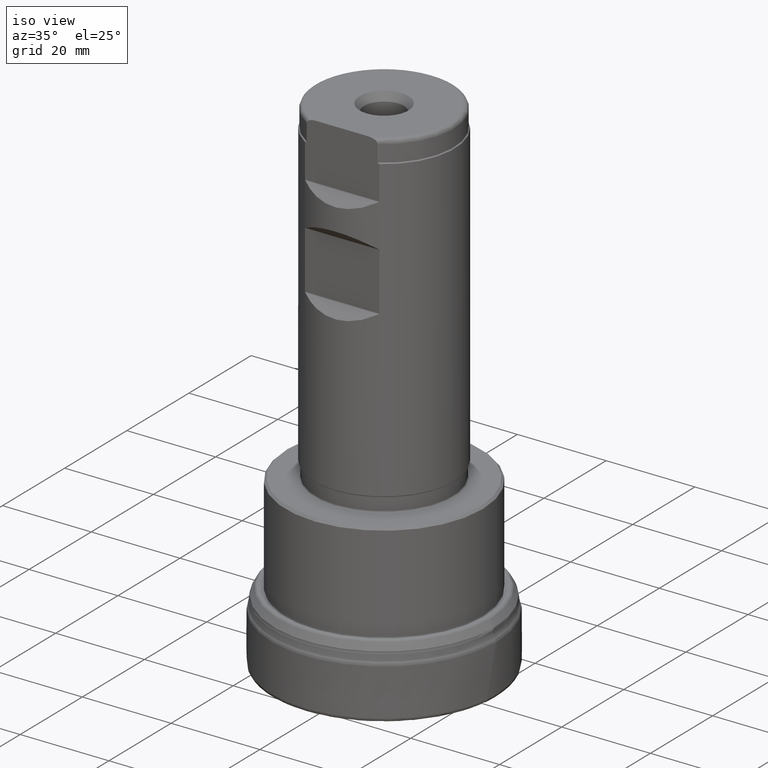
[diagram: clean part render]
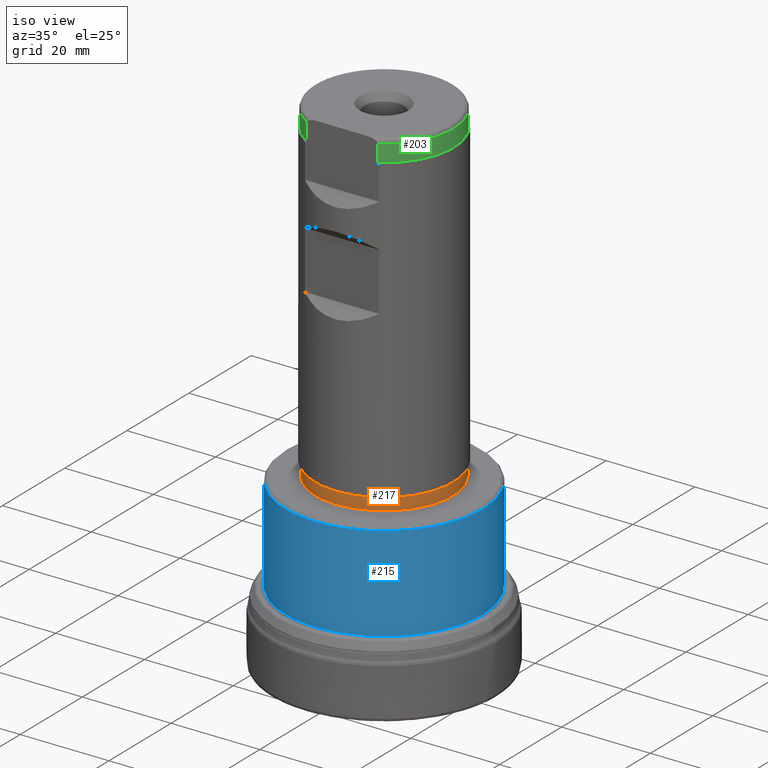
[diagram: same view with three faces highlighted in distinct colors, each labeled with its STEP entity id]
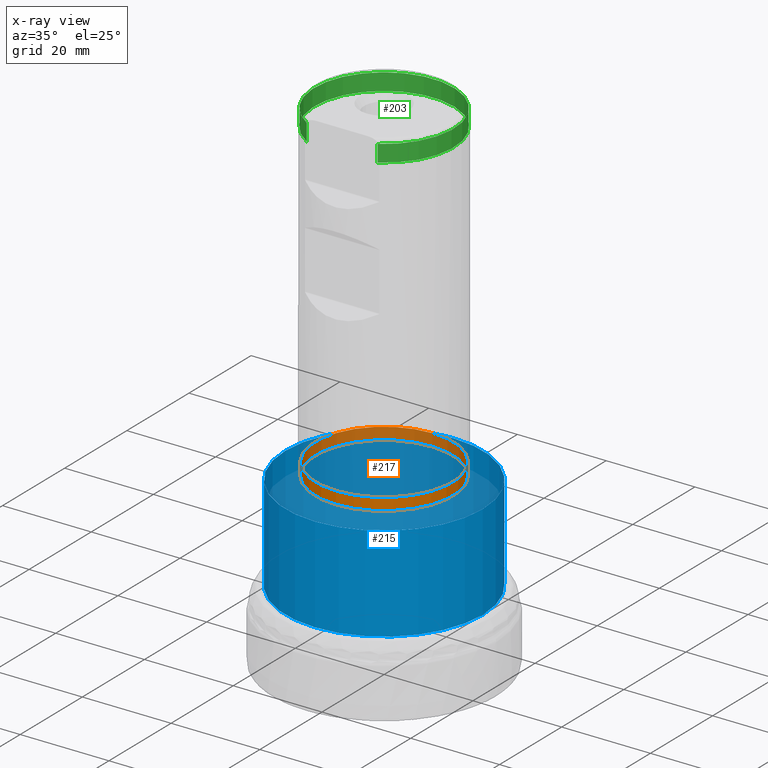
[diagram: x-ray of the same camera — body ghosted, the three highlighted faces saturated]
A machine part, iso view with three faces highlighted in distinct colors.
The next image is the same camera in x-ray (body ghosted, the three faces saturated) — at least one of them is partly hidden behind the body in this view.
Their STEP definitions:

[orange] entity #217 — the highlighted cylindrical surface (bore or boss wall) has radius 15.475 mm, axis along (0, -0, -1).
#217=ADVANCED_FACE('',(#346,#347),#267,.T.);
#267=CYLINDRICAL_SURFACE('',#975,15.475);
#299=CIRCLE('',#973,15.475);
#300=CIRCLE('',#974,15.475);
#346=FACE_BOUND('',#452,.T.);
#347=FACE_BOUND('',#453,.T.);
#452=EDGE_LOOP('',(#621));
#453=EDGE_LOOP('',(#622));
#621=ORIENTED_EDGE('',*,*,#846,.T.);
#622=ORIENTED_EDGE('',*,*,#847,.T.);
#771=VERTEX_POINT('',#1729);
#772=VERTEX_POINT('',#1731);
#846=EDGE_CURVE('',#771,#771,#299,.T.);
#847=EDGE_CURVE('',#772,#772,#300,.T.);
#973=AXIS2_PLACEMENT_3D('',#1728,#1118,#1119);
#974=AXIS2_PLACEMENT_3D('',#1730,#1120,#1121);
#975=AXIS2_PLACEMENT_3D('',#1732,#1122,#1123);
#1118=DIRECTION('',(0.,-1.17145536458252E-15,-1.));
#1119=DIRECTION('',(0.,1.,-1.34518137070899E-15));
#1120=DIRECTION('',(0.,1.17145536458252E-15,1.));
#1121=DIRECTION('',(0.,-1.,1.34518137070899E-15));
#1122=DIRECTION('',(0.,-1.17145536458252E-15,-1.));
#1123=DIRECTION('',(0.,1.,-1.17145536458252E-15));
#1728=CARTESIAN_POINT('',(0.,4.82639610208E-14,41.2));
#1729=CARTESIAN_POINT('',(0.,15.475,41.2));
#1730=CARTESIAN_POINT('',(0.,4.51010315364272E-14,38.5));
#1731=CARTESIAN_POINT('',(0.,-15.4749999999999,38.5));
#1732=CARTESIAN_POINT('',(0.,0.,0.));

[blue] entity #215 — the highlighted cylindrical surface (bore or boss wall) has radius 22.225 mm, axis along (0, -0, -1).
#215=ADVANCED_FACE('',(#342,#343),#266,.T.);
#266=CYLINDRICAL_SURFACE('',#969,22.225);
#295=CIRCLE('',#967,22.225);
#296=CIRCLE('',#968,22.225);
#342=FACE_BOUND('',#448,.T.);
#343=FACE_BOUND('',#449,.T.);
#448=EDGE_LOOP('',(#617));
#449=EDGE_LOOP('',(#618));
#617=ORIENTED_EDGE('',*,*,#842,.T.);
#618=ORIENTED_EDGE('',*,*,#843,.T.);
#767=VERTEX_POINT('',#1719);
#768=VERTEX_POINT('',#1721);
#842=EDGE_CURVE('',#767,#767,#295,.T.);
#843=EDGE_CURVE('',#768,#768,#296,.T.);
#967=AXIS2_PLACEMENT_3D('',#1718,#1106,#1107);
#968=AXIS2_PLACEMENT_3D('',#1720,#1108,#1109);
#969=AXIS2_PLACEMENT_3D('',#1722,#1110,#1111);
#1106=DIRECTION('',(0.,-1.17145536458252E-15,-1.));
#1107=DIRECTION('',(0.,-1.,1.24884479710366E-15));
#1108=DIRECTION('',(0.,1.17145536458252E-15,1.));
#1109=DIRECTION('',(0.,1.,-1.24884479710366E-15));
#1110=DIRECTION('',(0.,-1.17145536458252E-15,-1.));
#1111=DIRECTION('',(0.,1.,-1.17145536458252E-15));
#1718=CARTESIAN_POINT('',(0.,4.40467217083029E-14,37.6));
#1719=CARTESIAN_POINT('',(0.,-22.225,37.6));
#1720=CARTESIAN_POINT('',(0.,1.87891670765182E-14,16.0391660191117));
#1721=CARTESIAN_POINT('',(0.,22.225,16.0391660191117));
#1722=CARTESIAN_POINT('',(0.,0.,0.));

[green] entity #203 — the highlighted cylindrical surface (partial cylindrical patch) has radius 15.675 mm, axis along (0, -0, -1).
#191=FACE_OUTER_BOUND('',#427,.T.);
#203=ADVANCED_FACE('',(#191),#265,.T.);
#265=CYLINDRICAL_SURFACE('',#937,15.675);
#275=CIRCLE('',#935,15.675);
#276=CIRCLE('',#936,15.675);
#427=EDGE_LOOP('',(#586,#587,#588,#589));
#540=LINE('',#1639,#556);
#541=LINE('',#1643,#557);
#556=VECTOR('',#1041,1.);
#557=VECTOR('',#1044,1.);
#586=ORIENTED_EDGE('',*,*,#815,.T.);
#587=ORIENTED_EDGE('',*,*,#816,.T.);
#588=ORIENTED_EDGE('',*,*,#817,.T.);
#589=ORIENTED_EDGE('',*,*,#818,.T.);
#744=VERTEX_POINT('',#1637);
#745=VERTEX_POINT('',#1638);
#746=VERTEX_POINT('',#1640);
#747=VERTEX_POINT('',#1642);
#815=EDGE_CURVE('',#744,#745,#275,.T.);
#816=EDGE_CURVE('',#745,#746,#540,.T.);
#817=EDGE_CURVE('',#746,#747,#276,.T.);
#818=EDGE_CURVE('',#747,#744,#541,.T.);
#935=AXIS2_PLACEMENT_3D('',#1636,#1039,#1040);
#936=AXIS2_PLACEMENT_3D('',#1641,#1042,#1043);
#937=AXIS2_PLACEMENT_3D('',#1644,#1045,#1046);
#1039=DIRECTION('',(0.,1.17145536458252E-15,1.));
#1040=DIRECTION('',(0.,-1.,8.85345314693108E-16));
#1041=DIRECTION('',(0.,1.17145536458252E-15,1.));
#1042=DIRECTION('',(0.,-1.17145536458252E-15,-1.));
#1043=DIRECTION('',(0.,-1.,8.85345314693108E-16));
#1044=DIRECTION('',(0.,-1.17145536458252E-15,-1.));
#1045=DIRECTION('',(0.,-1.17145536458252E-15,-1.));
#1046=DIRECTION('',(0.,1.,-1.17145536458252E-15));
#1636=CARTESIAN_POINT('',(0.,1.28274362421786E-13,109.5));
#1637=CARTESIAN_POINT('',(7.98721893026594,-13.4873999999999,109.5));
#1638=CARTESIAN_POINT('',(-7.98721893026594,-13.4873999999999,109.5));
#1639=CARTESIAN_POINT('',(-7.98721893026594,-13.4874,1.94844397472451E-14));
#1640=CARTESIAN_POINT('',(-7.98721893028867,-13.4873999999999,113.299999999989));
#1641=CARTESIAN_POINT('',(0.,1.327258928072E-13,113.3));
#1642=CARTESIAN_POINT('',(7.987218930266,-13.4873999999999,113.3));
#1643=CARTESIAN_POINT('',(7.98721893026594,-13.4874,1.94844397472451E-14));
#1644=CARTESIAN_POINT('',(0.,0.,0.));